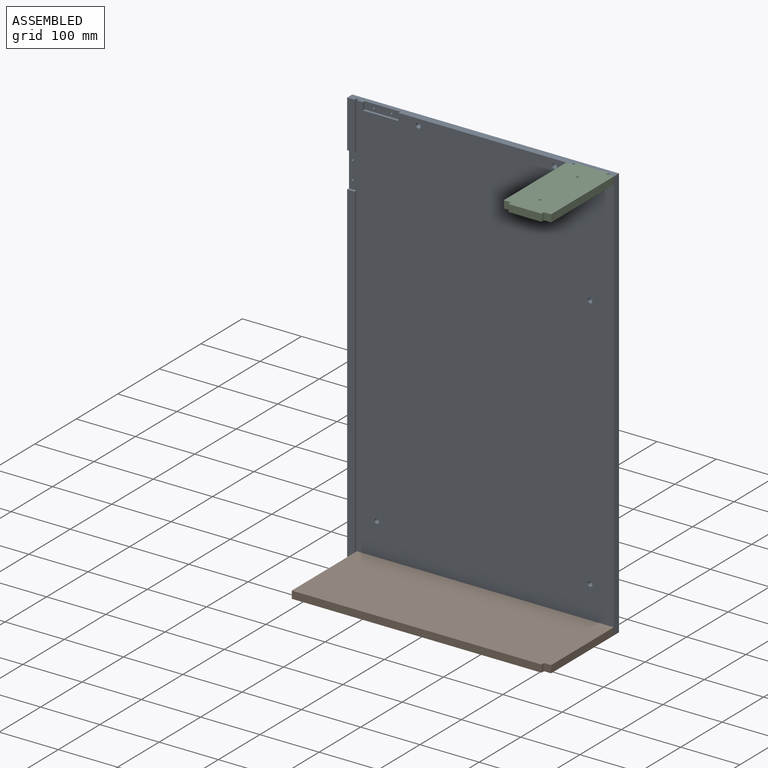
[diagram: assembled view]
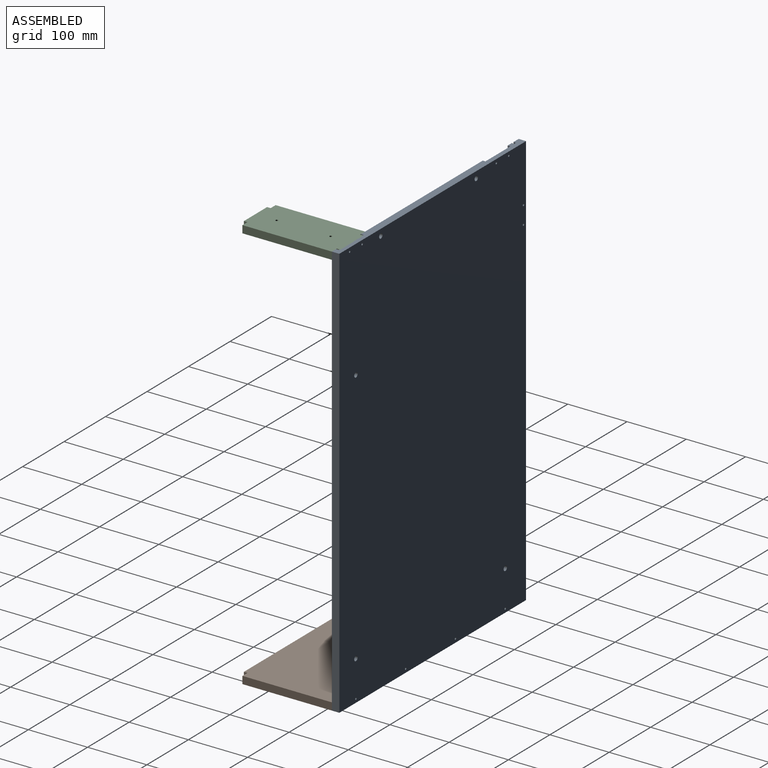
[diagram: assembled view, second angle]
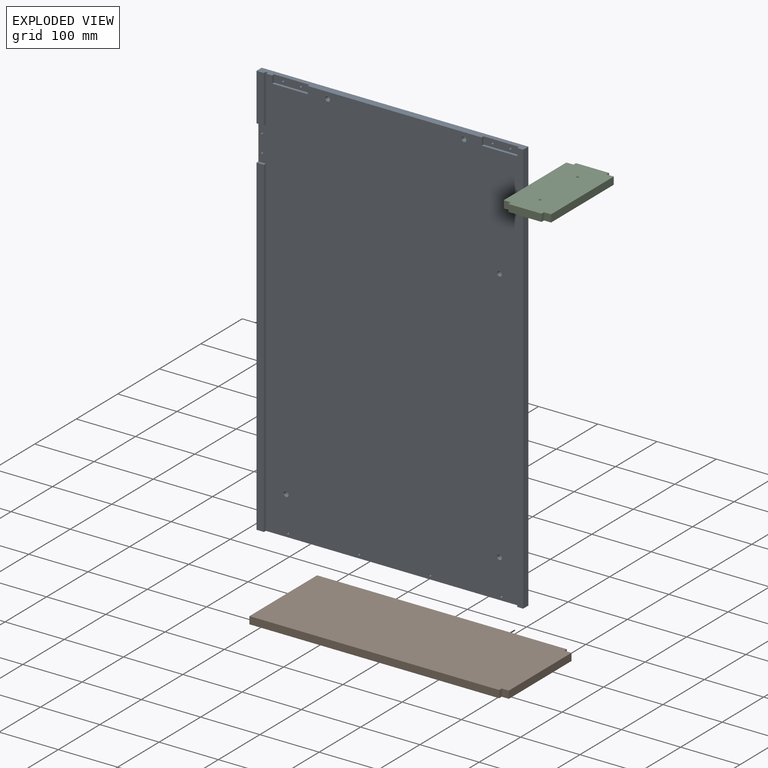
[diagram: exploded view]
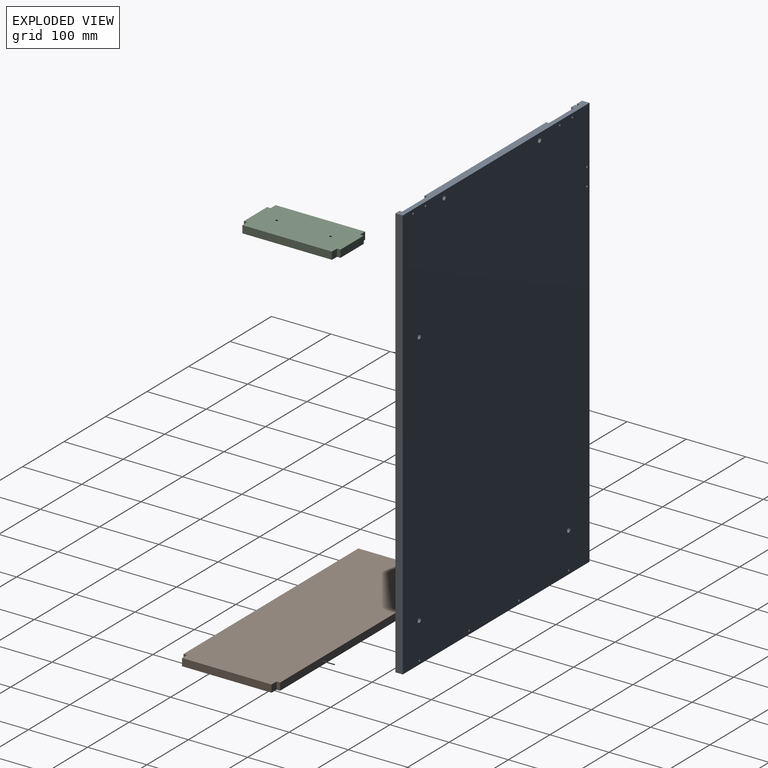
[diagram: exploded view, second angle]
ASSEMBLY  parts=3 mates=2
PART A: 39 faces, bbox 450x12.5x700 mm
  f0: plane 700x440mm, normal (0,-1,0), area 8786mm2, adj f3,f4,f5,f9,f10,f11,f12,f13
  f1: plane 60x12.5mm, normal (0,-1,0), area 730.8mm2, adj f3,f7,f8,f26,f27,f28
  f2: plane 60x12.5mm, normal (0,-1,0), area 730.8mm2, adj f3,f6,f21,f23,f24,f25
  f3: plane 450x12.5mm, normal (0,0,1), area 5067mm2, adj f0,f1,f2,f4,f20,f22,f23,f25
  f4: plane 700x12.5mm, normal (-1,0,0), area 8480mm2, adj f0,f3,f5,f22,f33,f35,f36,f38
  f5: plane 450x12.5mm, normal (0,0,-1), area 3701.3mm2, adj f0,f4,f20,f22,f31,f32,f37,f38
  f6: cylinder r=1.75mm len=8mm, axis (0,-1,0), area 88mm2, adj f2,f22
  f7: cylinder r=1.75mm len=8mm, axis (0,-1,0), area 88mm2, adj f1,f22
  f8: cylinder r=1.75mm len=8mm, axis (0,-1,0), area 88mm2, adj f1,f22
  f9: cylinder r=1.75mm len=8mm, axis (0,-1,0), area 88mm2, adj f0,f22
  f10: cylinder r=1.75mm len=8mm, axis (0,-1,0), area 88mm2, adj f0,f22
  f11: cylinder r=1.75mm len=8mm, axis (0,-1,0), area 88mm2, adj f0,f22
  f12: cylinder r=1.75mm len=8mm, axis (0,-1,0), area 88mm2, adj f0,f22
  f13: cylinder r=1.75mm len=8mm, axis (0,-1,0), area 88mm2, adj f0,f22
  f14: cylinder r=1.75mm len=8mm, axis (0,-1,0), area 88mm2, adj f0,f22
  f15: cylinder r=4mm len=12.5mm, axis (0,-1,0), area 314.2mm2, adj f22,f32
  f16: cylinder r=4mm len=12.5mm, axis (0,-1,0), area 314.2mm2, adj f22,f32
  f17: cylinder r=4mm len=12.5mm, axis (0,-1,0), area 314.2mm2, adj f22,f32
  f18: cylinder r=4mm len=12.5mm, axis (0,-1,0), area 314.2mm2, adj f22,f32
  f19: cylinder r=4mm len=12.5mm, axis (0,-1,0), area 314.2mm2, adj f22,f32
  f20: plane 700x12.5mm, normal (1,0,0), area 8750mm2, adj f3,f5,f22,f32
  f21: cylinder r=1.75mm len=8mm, axis (0,-1,0), area 88mm2, adj f2,f22
  f22: plane 700x450mm, normal (0,1,0), area 314652.5mm2, adj f3,f4,f5,f6,f7,f8,f9,f10
  f23: plane 12.5x4.5mm, normal (-1,0,0), area 56.3mm2, adj f2,f3,f24,f32
  f24: plane 60x4.5mm, normal (0,0,1), area 270mm2, adj f2,f23,f25,f32
  f25: plane 12.5x4.5mm, normal (1,0,0), area 56.3mm2, adj f2,f3,f24,f32
  f26: plane 12.5x4.5mm, normal (-1,0,0), area 56.3mm2, adj f1,f3,f27,f32
  f27: plane 60x4.5mm, normal (0,0,1), area 270mm2, adj f1,f26,f28,f32
  f28: plane 12.5x4.5mm, normal (1,0,0), area 56.3mm2, adj f1,f3,f27,f32
  f29: plane 687.5x4.5mm, normal (-1,0,0), area 3093.7mm2, adj f0,f3,f30,f32
  f30: plane 423.5x4.5mm, normal (0,0,-1), area 1905.7mm2, adj f0,f29,f31,f32
  f31: plane 12.5x4.5mm, normal (-1,0,0), area 56.3mm2, adj f0,f5,f30,f32
  f32: plane 700x433.5mm, normal (0,-1,0), area 296404.9mm2, adj f3,f5,f15,f16,f17,f18,f19,f20
  f33: plane 12.5x4.5mm, normal (0,0,-1), area 56.3mm2, adj f0,f4,f34,f35
  f34: plane 80x4.5mm, normal (1,0,0), area 360mm2, adj f0,f3,f33,f35
  f35: plane 80x12.5mm, normal (0,-1,0), area 1000mm2, adj f3,f4,f33,f34
  f36: plane 12.5x4.5mm, normal (0,0,1), area 56.3mm2, adj f0,f4,f37,f38
  f37: plane 560x4.5mm, normal (1,0,0), area 2520mm2, adj f0,f5,f36,f38
  f38: plane 560x12.5mm, normal (0,-1,0), area 7000mm2, adj f4,f5,f36,f37
PART B: 10 faces, bbox 163x12.5x433.5 mm
  f0: plane 151x12.5mm, normal (0,0,-1), area 1887.5mm2, adj f1,f7,f8,f9
  f1: plane 12.5x12mm, normal (1,0,0), area 150mm2, adj f0,f2,f8,f9
  f2: plane 12.5x6mm, normal (0,0,-1), area 75mm2, adj f1,f3,f8,f9
  f3: plane 421.5x12.5mm, normal (1,0,0), area 5268.8mm2, adj f2,f4,f8,f9
  f4: plane 163x12.5mm, normal (0,0,1), area 2037.5mm2, adj f3,f5,f8,f9
  f5: plane 421.5x12.5mm, normal (-1,0,0), area 5268.8mm2, adj f4,f6,f8,f9
  f6: plane 12.5x6mm, normal (0,0,-1), area 75mm2, adj f5,f7,f8,f9
  f7: plane 12.5x12mm, normal (-1,0,0), area 150mm2, adj f0,f6,f8,f9
  f8: plane 433.5x163mm, normal (0,-1,0), area 70516.5mm2, adj f0,f1,f2,f3,f4,f5,f6,f7
  f9: plane 433.5x163mm, normal (0,1,0), area 70516.5mm2, adj f0,f1,f2,f3,f4,f5,f6,f7
PART C: 16 faces, bbox 163x12.5x80 mm
  f0: plane 12.5x12mm, normal (1,0,0), area 150mm2, adj f1,f12,f14,f15
  f1: plane 151x12.5mm, normal (0,0,1), area 1887.5mm2, adj f0,f2,f14,f15
  f2: plane 12.5x12mm, normal (-1,0,0), area 150mm2, adj f1,f3,f14,f15
  f3: plane 12.5x6mm, normal (0,0,1), area 75mm2, adj f2,f4,f14,f15
  f4: plane 56x12.5mm, normal (-1,0,0), area 700mm2, adj f3,f5,f14,f15
  f5: plane 12.5x6mm, normal (0,0,-1), area 75mm2, adj f4,f6,f14,f15
  f6: plane 12.5x12mm, normal (-1,0,0), area 150mm2, adj f5,f7,f14,f15
  f7: plane 151x12.5mm, normal (0,0,-1), area 1887.5mm2, adj f6,f8,f14,f15
  f8: plane 12.5x12mm, normal (1,0,0), area 150mm2, adj f7,f9,f14,f15
  f9: plane 12.5x6mm, normal (0,0,-1), area 75mm2, adj f8,f10,f14,f15
  f10: plane 56x12.5mm, normal (1,0,0), area 700mm2, adj f9,f12,f14,f15
  f11: cylinder r=2mm len=12.5mm, axis (0,1,0), area 157.1mm2, adj f14,f15
  f12: plane 12.5x6mm, normal (0,0,1), area 75mm2, adj f0,f10,f14,f15
  f13: cylinder r=2mm len=12.5mm, axis (0,1,0), area 157.1mm2, adj f14,f15
  f14: plane 163x80mm, normal (0,-1,0), area 12726.9mm2, adj f0,f1,f2,f3,f4,f5,f6,f7
  f15: plane 163x80mm, normal (0,1,0), area 12726.9mm2, adj f0,f1,f2,f3,f4,f5,f6,f7
PLACE A t=(-437.87,-671.83,96.64)mm fixed
PLACE B rot(axis=(-0.58,-0.58,0.58),120deg) t=(-1026.97,550.81,-276.9)mm
PLACE C rot(axis=(-0.58,-0.58,0.58),120deg) t=(-239.74,156.81,410.6)mm
MATE fastened B.f1 <-> A.f32  axis (0,1,0) through (-469.46,-676.33,-276.9)mm
MATE fastened C.f8 <-> A.f32  axis (0,1,0) through (-469.46,-676.33,423.1)mm
